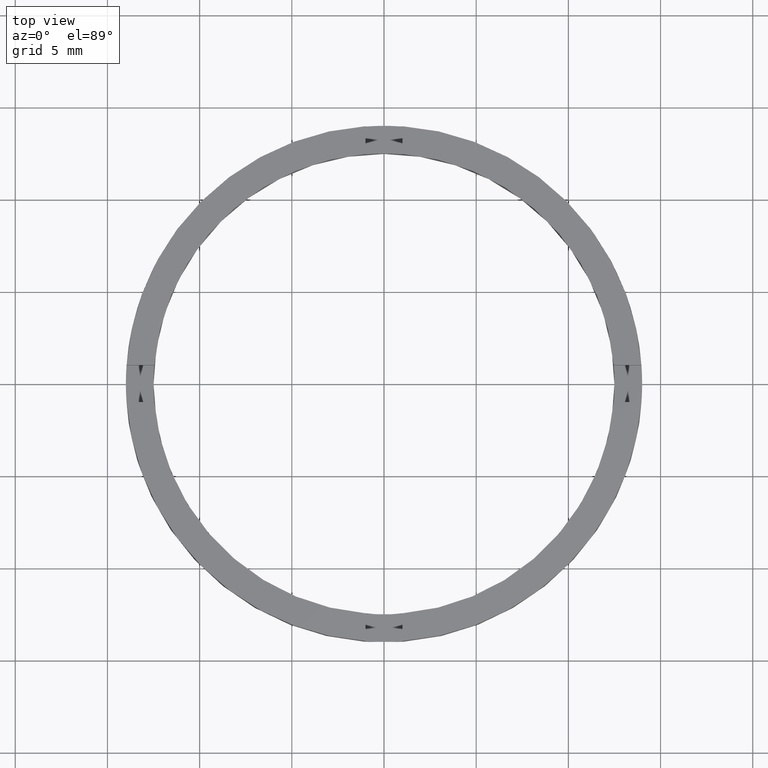
[diagram: clean part render]
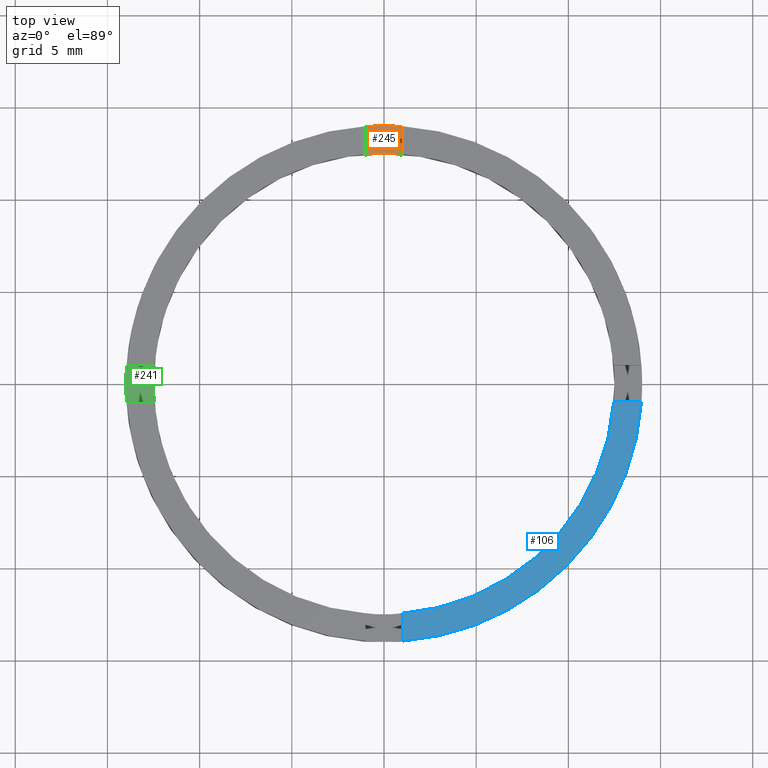
[diagram: same view with three faces highlighted in distinct colors, each labeled with its STEP entity id]
A machine part, top view with three faces highlighted in distinct colors.
Their STEP definitions:

[orange] entity #245 — the highlighted planar face has unit normal (0, -0, 1).
#1 = CARTESIAN_POINT ( 'NONE',  ( 0.000000000000000000, 0.000000000000000000, 1.500000000000000000 ) ) ;
#10 = CARTESIAN_POINT ( 'NONE',  ( 0.9999999999999753530, 12.45993579437711674, 1.500000000000000000 ) ) ;
#28 = DIRECTION ( 'NONE',  ( 0.000000000000000000, -0.000000000000000000, 1.000000000000000000 ) ) ;
#45 = DIRECTION ( 'NONE',  ( 1.000000000000000000, 0.000000000000000000, 0.000000000000000000 ) ) ;
#55 = DIRECTION ( 'NONE',  ( 0.000000000000000000, -0.000000000000000000, 1.000000000000000000 ) ) ;
#56 = CARTESIAN_POINT ( 'NONE',  ( -1.000000000000024647, 12.45993579437711141, 1.500000000000000000 ) ) ;
#73 = AXIS2_PLACEMENT_3D ( 'NONE', #538, #28, #290 ) ;
#85 = DIRECTION ( 'NONE',  ( 0.000000000000000000, -0.000000000000000000, 1.000000000000000000 ) ) ;
#141 = ORIENTED_EDGE ( 'NONE', *, *, #648, .T. ) ;
#146 = CARTESIAN_POINT ( 'NONE',  ( -1.000000000000024647, 13.96424004376894068, 1.500000000000000000 ) ) ;
#176 = ORIENTED_EDGE ( 'NONE', *, *, #502, .F. ) ;
#193 = VECTOR ( 'NONE', #721, 1000.000000000000000 ) ;
#217 = CIRCLE ( 'NONE', #602, 12.50000000000000000 ) ;
#245 = ADVANCED_FACE ( 'NONE', ( #491 ), #684, .T. ) ;
#275 = VERTEX_POINT ( 'NONE', #146 ) ;
#278 = VERTEX_POINT ( 'NONE', #10 ) ;
#282 = ORIENTED_EDGE ( 'NONE', *, *, #289, .T. ) ;
#289 = EDGE_CURVE ( 'NONE', #278, #678, #463, .T. ) ;
#290 = DIRECTION ( 'NONE',  ( 1.000000000000000000, 0.000000000000000000, -0.000000000000000000 ) ) ;
#312 = EDGE_CURVE ( 'NONE', #678, #275, #695, .T. ) ;
#332 = AXIS2_PLACEMENT_3D ( 'NONE', #1, #55, #448 ) ;
#426 = EDGE_LOOP ( 'NONE', ( #436, #141, #176, #282 ) ) ;
#436 = ORIENTED_EDGE ( 'NONE', *, *, #312, .T. ) ;
#448 = DIRECTION ( 'NONE',  ( 1.000000000000000000, 0.000000000000000000, 0.000000000000000000 ) ) ;
#463 = LINE ( 'NONE', #629, #193 ) ;
#491 = FACE_OUTER_BOUND ( 'NONE', #426, .T. ) ;
#496 = CARTESIAN_POINT ( 'NONE',  ( 0.9999999999999753530, 13.96424004376894423, 1.500000000000000000 ) ) ;
#502 = EDGE_CURVE ( 'NONE', #278, #514, #217, .T. ) ;
#514 = VERTEX_POINT ( 'NONE', #56 ) ;
#538 = CARTESIAN_POINT ( 'NONE',  ( 0.000000000000000000, 0.000000000000000000, 1.500000000000000000 ) ) ;
#547 = CARTESIAN_POINT ( 'NONE',  ( -1.000000000000024647, 4.000000000000000000, 1.500000000000000000 ) ) ;
#602 = AXIS2_PLACEMENT_3D ( 'NONE', #735, #85, #45 ) ;
#629 = CARTESIAN_POINT ( 'NONE',  ( 0.9999999999999753530, 4.000000000000000000, 1.500000000000000000 ) ) ;
#633 = DIRECTION ( 'NONE',  ( -0.000000000000000000, -1.000000000000000000, -0.000000000000000000 ) ) ;
#648 = EDGE_CURVE ( 'NONE', #275, #514, #699, .T. ) ;
#678 = VERTEX_POINT ( 'NONE', #496 ) ;
#684 = PLANE ( 'NONE',  #73 ) ;
#695 = CIRCLE ( 'NONE', #332, 14.00000000000000000 ) ;
#699 = LINE ( 'NONE', #547, #702 ) ;
#702 = VECTOR ( 'NONE', #633, 1000.000000000000000 ) ;
#721 = DIRECTION ( 'NONE',  ( 0.000000000000000000, 1.000000000000000000, 0.000000000000000000 ) ) ;
#735 = CARTESIAN_POINT ( 'NONE',  ( 0.000000000000000000, 0.000000000000000000, 1.500000000000000000 ) ) ;

[blue] entity #106 — the highlighted planar face has unit normal (0, 0, 1).
#6 = EDGE_LOOP ( 'NONE', ( #517, #149, #376, #421 ) ) ;
#16 = CARTESIAN_POINT ( 'NONE',  ( 0.9999999999998366862, -13.96424004376895311, 2.500000000000000000 ) ) ;
#49 = AXIS2_PLACEMENT_3D ( 'NONE', #544, #434, #589 ) ;
#90 = CARTESIAN_POINT ( 'NONE',  ( 0.9999999999998354649, -4.000000000000180300, 2.500000000000000000 ) ) ;
#106 = ADVANCED_FACE ( 'NONE', ( #722 ), #208, .T. ) ;
#111 = CARTESIAN_POINT ( 'NONE',  ( 0.000000000000000000, 0.000000000000000000, 2.500000000000000000 ) ) ;
#112 = CIRCLE ( 'NONE', #116, 14.00000000000000000 ) ;
#116 = AXIS2_PLACEMENT_3D ( 'NONE', #111, #316, #359 ) ;
#149 = ORIENTED_EDGE ( 'NONE', *, *, #769, .F. ) ;
#188 = VECTOR ( 'NONE', #328, 1000.000000000000000 ) ;
#208 = PLANE ( 'NONE',  #244 ) ;
#244 = AXIS2_PLACEMENT_3D ( 'NONE', #274, #355, #442 ) ;
#248 = CARTESIAN_POINT ( 'NONE',  ( 13.96424004376893002, -1.000000000000159650, 2.500000000000000000 ) ) ;
#256 = DIRECTION ( 'NONE',  ( 1.000000000000000000, 4.336808689942017736E-17, 0.000000000000000000 ) ) ;
#274 = CARTESIAN_POINT ( 'NONE',  ( 0.000000000000000000, 0.000000000000000000, 2.500000000000000000 ) ) ;
#296 = CARTESIAN_POINT ( 'NONE',  ( 12.45993579437710075, -1.000000000000159872, 2.500000000000000000 ) ) ;
#316 = DIRECTION ( 'NONE',  ( 0.000000000000000000, 0.000000000000000000, 1.000000000000000000 ) ) ;
#328 = DIRECTION ( 'NONE',  ( -1.301042606982605321E-16, 1.000000000000000000, -0.000000000000000000 ) ) ;
#355 = DIRECTION ( 'NONE',  ( 0.000000000000000000, 0.000000000000000000, 1.000000000000000000 ) ) ;
#359 = DIRECTION ( 'NONE',  ( 1.000000000000000000, 0.000000000000000000, 0.000000000000000000 ) ) ;
#375 = CIRCLE ( 'NONE', #49, 12.50000000000000000 ) ;
#376 = ORIENTED_EDGE ( 'NONE', *, *, #710, .F. ) ;
#390 = VECTOR ( 'NONE', #256, 1000.000000000000000 ) ;
#421 = ORIENTED_EDGE ( 'NONE', *, *, #566, .T. ) ;
#434 = DIRECTION ( 'NONE',  ( 0.000000000000000000, 0.000000000000000000, 1.000000000000000000 ) ) ;
#442 = DIRECTION ( 'NONE',  ( 1.000000000000000000, 0.000000000000000000, -0.000000000000000000 ) ) ;
#457 = CARTESIAN_POINT ( 'NONE',  ( 3.999999999999994671, -1.000000000000160094, 2.500000000000000000 ) ) ;
#517 = ORIENTED_EDGE ( 'NONE', *, *, #570, .F. ) ;
#530 = VERTEX_POINT ( 'NONE', #296 ) ;
#539 = CARTESIAN_POINT ( 'NONE',  ( 0.9999999999998365752, -12.45993579437712739, 2.500000000000000000 ) ) ;
#544 = CARTESIAN_POINT ( 'NONE',  ( 0.000000000000000000, 0.000000000000000000, 2.500000000000000000 ) ) ;
#566 = EDGE_CURVE ( 'NONE', #752, #778, #112, .T. ) ;
#570 = EDGE_CURVE ( 'NONE', #530, #778, #624, .T. ) ;
#589 = DIRECTION ( 'NONE',  ( 1.000000000000000000, 0.000000000000000000, 0.000000000000000000 ) ) ;
#624 = LINE ( 'NONE', #457, #390 ) ;
#683 = LINE ( 'NONE', #90, #188 ) ;
#710 = EDGE_CURVE ( 'NONE', #752, #765, #683, .T. ) ;
#722 = FACE_OUTER_BOUND ( 'NONE', #6, .T. ) ;
#752 = VERTEX_POINT ( 'NONE', #16 ) ;
#765 = VERTEX_POINT ( 'NONE', #539 ) ;
#769 = EDGE_CURVE ( 'NONE', #765, #530, #375, .T. ) ;
#778 = VERTEX_POINT ( 'NONE', #248 ) ;

[green] entity #241 — the highlighted planar face has unit normal (0, 0, 1).
#2 = ORIENTED_EDGE ( 'NONE', *, *, #305, .F. ) ;
#3 = DIRECTION ( 'NONE',  ( 0.000000000000000000, 0.000000000000000000, 1.000000000000000000 ) ) ;
#13 = DIRECTION ( 'NONE',  ( 1.000000000000000000, 1.734723475976807094E-16, -0.000000000000000000 ) ) ;
#17 = CARTESIAN_POINT ( 'NONE',  ( 0.000000000000000000, 0.000000000000000000, 1.500000000000000000 ) ) ;
#19 = DIRECTION ( 'NONE',  ( 0.000000000000000000, 0.000000000000000000, 1.000000000000000000 ) ) ;
#26 = EDGE_CURVE ( 'NONE', #180, #123, #418, .T. ) ;
#37 = CARTESIAN_POINT ( 'NONE',  ( -13.96424004376894068, -1.000000000000022871, 1.500000000000000000 ) ) ;
#38 = AXIS2_PLACEMENT_3D ( 'NONE', #371, #529, #569 ) ;
#41 = PLANE ( 'NONE',  #219 ) ;
#52 = CARTESIAN_POINT ( 'NONE',  ( 0.000000000000000000, 0.000000000000000000, 1.500000000000000000 ) ) ;
#67 = EDGE_CURVE ( 'NONE', #488, #233, #718, .T. ) ;
#69 = DIRECTION ( 'NONE',  ( 1.000000000000000000, 0.000000000000000000, -0.000000000000000000 ) ) ;
#76 = CARTESIAN_POINT ( 'NONE',  ( -14.00000000000000000, 0.000000000000000000, 1.500000000000000000 ) ) ;
#80 = DIRECTION ( 'NONE',  ( 1.000000000000000000, 0.000000000000000000, 0.000000000000000000 ) ) ;
#113 = EDGE_CURVE ( 'NONE', #123, #268, #227, .T. ) ;
#123 = VERTEX_POINT ( 'NONE', #303 ) ;
#147 = ORIENTED_EDGE ( 'NONE', *, *, #113, .T. ) ;
#152 = VECTOR ( 'NONE', #13, 1000.000000000000000 ) ;
#158 = ORIENTED_EDGE ( 'NONE', *, *, #322, .T. ) ;
#180 = VERTEX_POINT ( 'NONE', #579 ) ;
#181 = DIRECTION ( 'NONE',  ( 0.000000000000000000, 0.000000000000000000, 1.000000000000000000 ) ) ;
#191 = CARTESIAN_POINT ( 'NONE',  ( -12.50000000000000000, 0.000000000000000000, 1.500000000000000000 ) ) ;
#219 = AXIS2_PLACEMENT_3D ( 'NONE', #601, #3, #69 ) ;
#227 = CIRCLE ( 'NONE', #689, 14.00000000000000000 ) ;
#233 = VERTEX_POINT ( 'NONE', #588 ) ;
#241 = ADVANCED_FACE ( 'NONE', ( #504 ), #41, .T. ) ;
#253 = DIRECTION ( 'NONE',  ( 1.000000000000000000, 0.000000000000000000, 0.000000000000000000 ) ) ;
#266 = EDGE_LOOP ( 'NONE', ( #147, #520, #158, #273, #2, #660 ) ) ;
#268 = VERTEX_POINT ( 'NONE', #76 ) ;
#273 = ORIENTED_EDGE ( 'NONE', *, *, #67, .F. ) ;
#284 = EDGE_CURVE ( 'NONE', #268, #773, #688, .T. ) ;
#303 = CARTESIAN_POINT ( 'NONE',  ( -13.96424004376894246, 0.9999999999999772404, 1.500000000000000000 ) ) ;
#305 = EDGE_CURVE ( 'NONE', #180, #488, #697, .T. ) ;
#317 = AXIS2_PLACEMENT_3D ( 'NONE', #52, #500, #640 ) ;
#322 = EDGE_CURVE ( 'NONE', #773, #233, #445, .T. ) ;
#335 = CARTESIAN_POINT ( 'NONE',  ( -4.000000000000185629, -1.000000000000021094, 1.500000000000000000 ) ) ;
#371 = CARTESIAN_POINT ( 'NONE',  ( 0.000000000000000000, 0.000000000000000000, 1.500000000000000000 ) ) ;
#418 = LINE ( 'NONE', #600, #714 ) ;
#445 = LINE ( 'NONE', #335, #152 ) ;
#488 = VERTEX_POINT ( 'NONE', #191 ) ;
#500 = DIRECTION ( 'NONE',  ( 0.000000000000000000, 0.000000000000000000, 1.000000000000000000 ) ) ;
#504 = FACE_OUTER_BOUND ( 'NONE', #266, .T. ) ;
#520 = ORIENTED_EDGE ( 'NONE', *, *, #284, .T. ) ;
#529 = DIRECTION ( 'NONE',  ( 0.000000000000000000, 0.000000000000000000, 1.000000000000000000 ) ) ;
#536 = DIRECTION ( 'NONE',  ( -1.000000000000000000, -1.734723475976807094E-16, 0.000000000000000000 ) ) ;
#569 = DIRECTION ( 'NONE',  ( 1.000000000000000000, 0.000000000000000000, 0.000000000000000000 ) ) ;
#579 = CARTESIAN_POINT ( 'NONE',  ( -12.45993579437711496, 0.9999999999999774625, 1.500000000000000000 ) ) ;
#588 = CARTESIAN_POINT ( 'NONE',  ( -12.45993579437711141, -1.000000000000022649, 1.500000000000000000 ) ) ;
#600 = CARTESIAN_POINT ( 'NONE',  ( -4.000000000000185629, 0.9999999999999790168, 1.500000000000000000 ) ) ;
#601 = CARTESIAN_POINT ( 'NONE',  ( 0.000000000000000000, 0.000000000000000000, 1.500000000000000000 ) ) ;
#640 = DIRECTION ( 'NONE',  ( 1.000000000000000000, 0.000000000000000000, 0.000000000000000000 ) ) ;
#653 = CARTESIAN_POINT ( 'NONE',  ( 0.000000000000000000, 0.000000000000000000, 1.500000000000000000 ) ) ;
#660 = ORIENTED_EDGE ( 'NONE', *, *, #26, .T. ) ;
#688 = CIRCLE ( 'NONE', #317, 14.00000000000000000 ) ;
#689 = AXIS2_PLACEMENT_3D ( 'NONE', #653, #19, #253 ) ;
#697 = CIRCLE ( 'NONE', #706, 12.50000000000000000 ) ;
#706 = AXIS2_PLACEMENT_3D ( 'NONE', #17, #181, #80 ) ;
#714 = VECTOR ( 'NONE', #536, 1000.000000000000000 ) ;
#718 = CIRCLE ( 'NONE', #38, 12.50000000000000000 ) ;
#773 = VERTEX_POINT ( 'NONE', #37 ) ;